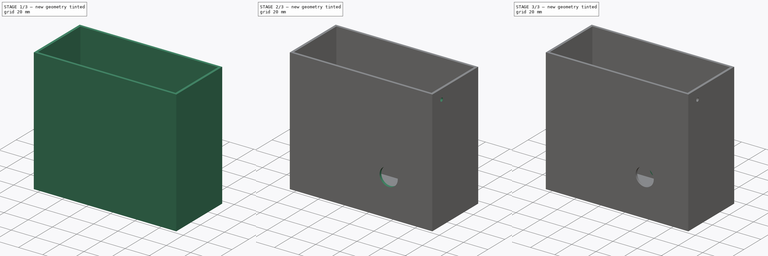
[diagram: build sequence overview — one tinted view per stage of 3, left to right]
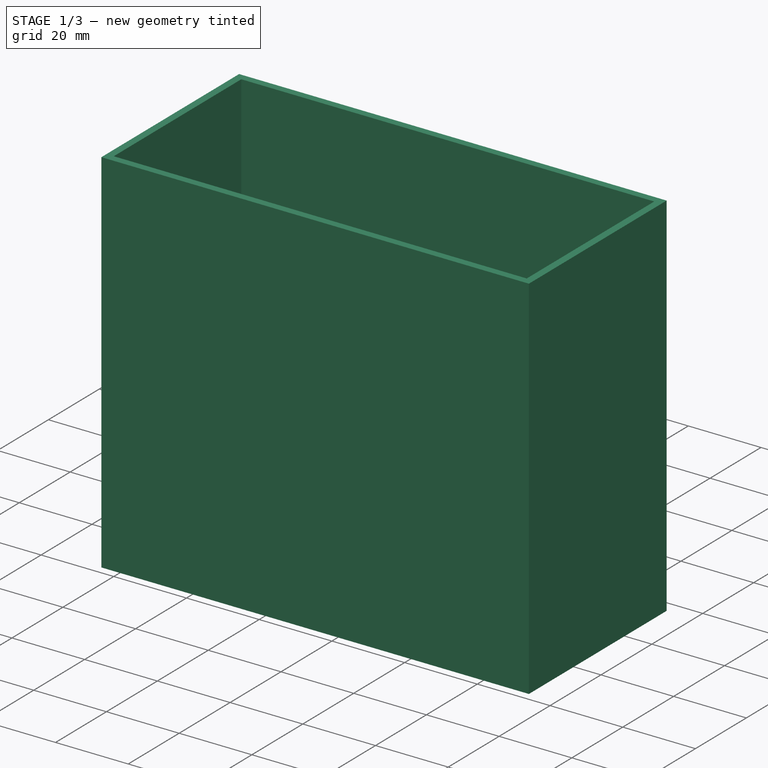
[diagram: stage 1 of 3 — iso view after this stage's code; geometry added in this stage tinted green]
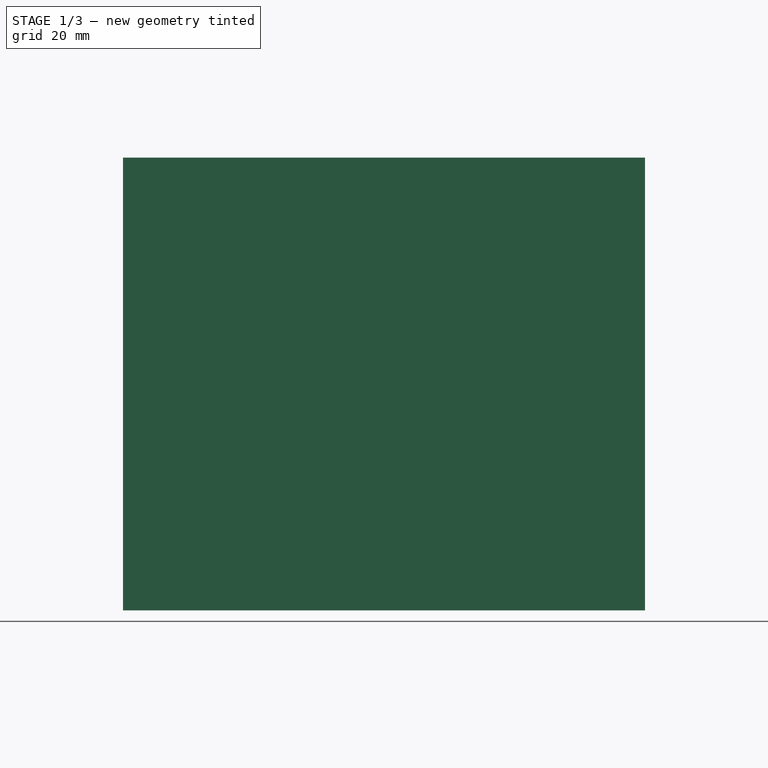
[diagram: stage 1 of 3 — front view after this stage's code; geometry added in this stage tinted green]
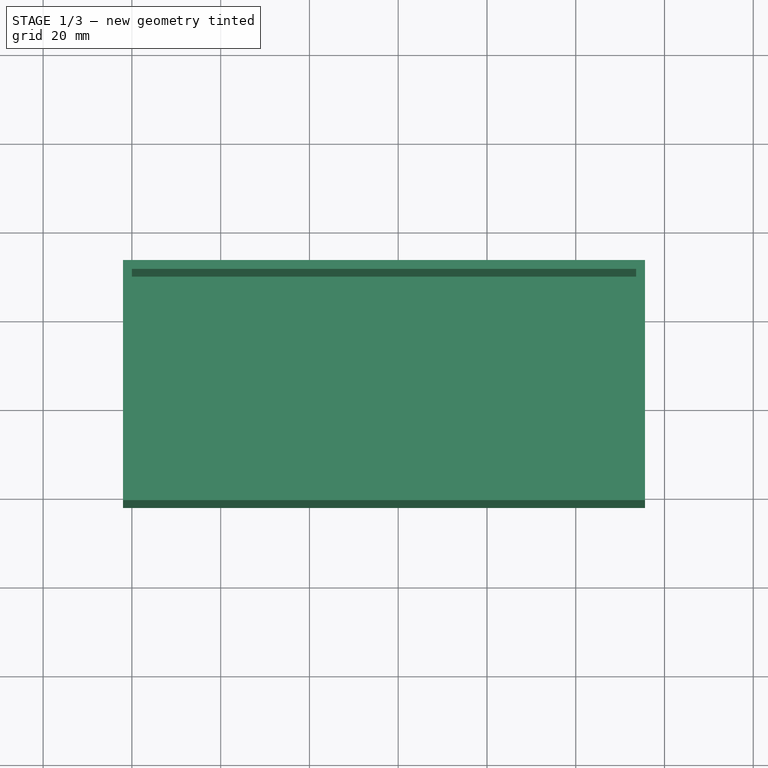
[diagram: stage 1 of 3 — top view after this stage's code; geometry added in this stage tinted green]
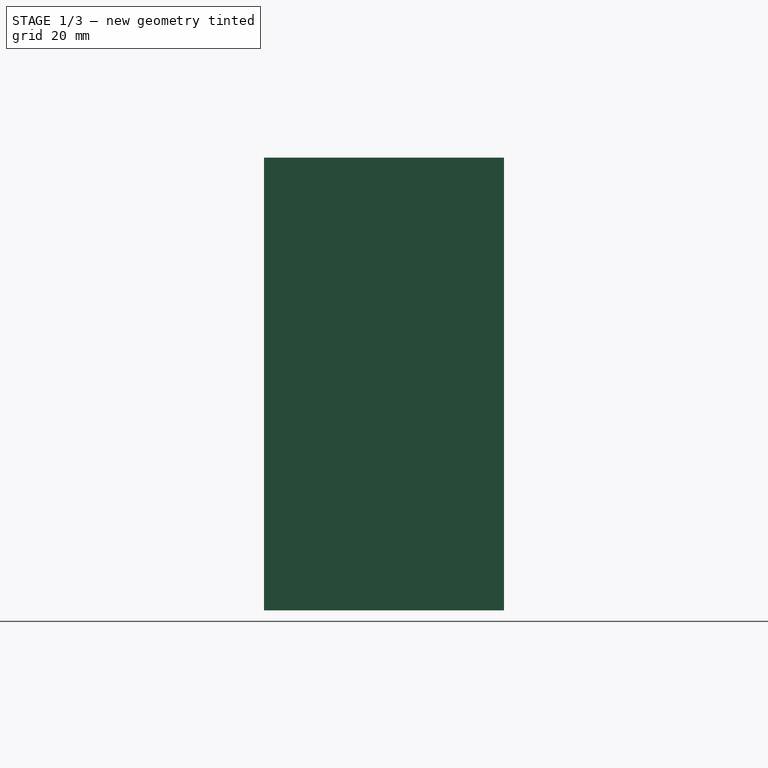
[diagram: stage 1 of 3 — right view after this stage's code; geometry added in this stage tinted green]
FCSTD DOCUMENT  (FreeCAD 0.21R33771 (Git))
Label: 3DPrinter-PSU-Base
License: All rights reserved
LicenseURL: http://en.wikipedia.org/wiki/All_rights_reserved
objects: Sketcher::SketchObject×6, PartDesign::Pad×3, PartDesign::Pocket×3, PartDesign::Fillet×1, PartDesign::Body×1
note: 21 computed .brp shape members not serialized (recipe doc carries the construction recipe); baked Part::Feature solids carry a one-line shape summary decoded from their .brp

FEATURE [Sketcher::SketchObject] Sketch
  FullyConstrained = true
  MapMode = 5
  Support = -> [XY_Plane]
  sketch-geometry (12):
    g0: LineSegment StartX=0 StartY=0 StartZ=0 EndX=113.6 EndY=0 EndZ=0
    g1: LineSegment StartX=113.6 StartY=0 StartZ=0 EndX=113.6 EndY=50.1 EndZ=0
    g2: LineSegment StartX=113.6 StartY=50.1 StartZ=0 EndX=0 EndY=50.1 EndZ=0
    g3: LineSegment StartX=0 StartY=50.1 StartZ=0 EndX=0 EndY=0 EndZ=0
    g4: LineSegment StartX=-2 StartY=-2 StartZ=0 EndX=115.6 EndY=-2 EndZ=0
    g5: LineSegment StartX=115.6 StartY=-2 StartZ=0 EndX=115.6 EndY=52.1 EndZ=0
    g6: LineSegment StartX=115.6 StartY=52.1 StartZ=0 EndX=-2 EndY=52.1 EndZ=0
    g7: LineSegment StartX=-2 StartY=52.1 StartZ=0 EndX=-2 EndY=-2 EndZ=0
    g8: LineSegment StartX=113.6 StartY=50.1 StartZ=0 EndX=115.6 EndY=50.1 EndZ=0
    g9: LineSegment StartX=113.6 StartY=50.1 StartZ=0 EndX=113.6 EndY=52.1 EndZ=0
    g10: LineSegment StartX=0 StartY=0 StartZ=0 EndX=-2 EndY=0 EndZ=0
    g11: LineSegment StartX=0 StartY=0 StartZ=0 EndX=0 EndY=-2 EndZ=0
  constraints (35):
    c: Coincident(g0,g1)
    c: Coincident(g1,g2)
    c: Coincident(g2,g3)
    c: Coincident(g3,g0)
    c: Horizontal(g0)
    c: Horizontal(g2)
    c: Vertical(g1)
    c: Vertical(g3)
    c: Coincident(g0,g-1)
    c: DistanceX(g0,g0) = 113.6
    c: Coincident(g4,g5)
    c: Coincident(g5,g6)
    c: Coincident(g6,g7)
    c: Coincident(g7,g4)
    c: Horizontal(g4)
    c: Horizontal(g6)
    c: Vertical(g5)
    c: Vertical(g7)
    c: DistanceY(g1,g1) = 50.1
    c: Coincident(g8,g1)
    c: PointOnObject(g8,g5)
    c: Horizontal(g8)
    c: DistanceX(g8,g8) = 2
    c: Coincident(g9,g1)
    c: PointOnObject(g9,g6)
    c: Vertical(g9)
    c: Equal(g9,g8)
    c: Coincident(g10,g0)
    c: PointOnObject(g10,g7)
    c: Horizontal(g10)
    c: Coincident(g11,g0)
    c: PointOnObject(g11,g4)
    c: Vertical(g11)
    c: Equal(g11,g10)
    c: Equal(g10,g8)
FEATURE [PartDesign::Pad] Pad
  Direction = (0,0,1)
  Length = 100
  Length2 = 10
  Profile = -> Sketch
  ReferenceAxis = -> Sketch [N_Axis]
  Type = 0
FEATURE [Sketcher::SketchObject] Sketch001
  ExternalGeometry = -> [Pad]
  FullyConstrained = true
  MapMode = 5
  Placement = pos=(0,0,0) rot=(1,0,0;3.14159rad)
  Support = -> [Pad]
  sketch-geometry (4):
    g0: LineSegment StartX=115.6 StartY=-52.1 StartZ=0 EndX=-2 EndY=-52.1 EndZ=0
    g1: LineSegment StartX=-2 StartY=-52.1 StartZ=0 EndX=-2 EndY=2 EndZ=0
    g2: LineSegment StartX=-2 StartY=2 StartZ=0 EndX=115.6 EndY=2 EndZ=0
    g3: LineSegment StartX=115.6 StartY=2 StartZ=0 EndX=115.6 EndY=-52.1 EndZ=0
  constraints (10):
    c: Coincident(g0,g1)
    c: Coincident(g1,g2)
    c: Coincident(g2,g3)
    c: Coincident(g3,g0)
    c: Horizontal(g0)
    c: Horizontal(g2)
    c: Vertical(g1)
    c: Vertical(g3)
    c: Coincident(g0,g-6)
    c: Coincident(g1,g-4)
FEATURE [PartDesign::Pad] Pad001
  BaseFeature = -> Pad
  Direction = (0,0,-1)
  Length = 2
  Length2 = 10
  Profile = -> Sketch001
  ReferenceAxis = -> Sketch001 [N_Axis]
  Type = 0
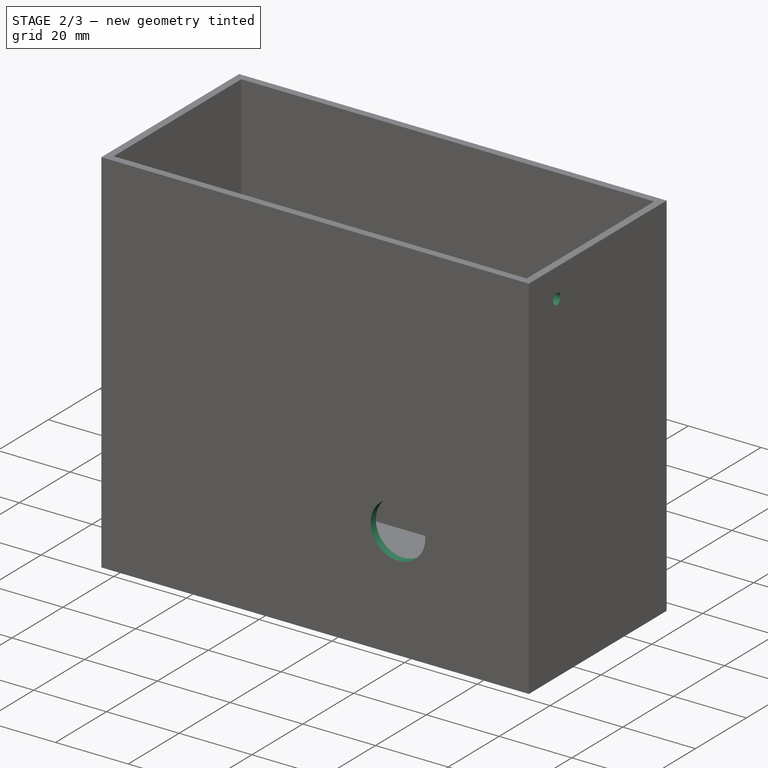
[diagram: stage 2 of 3 — iso view after this stage's code; geometry added in this stage tinted green]
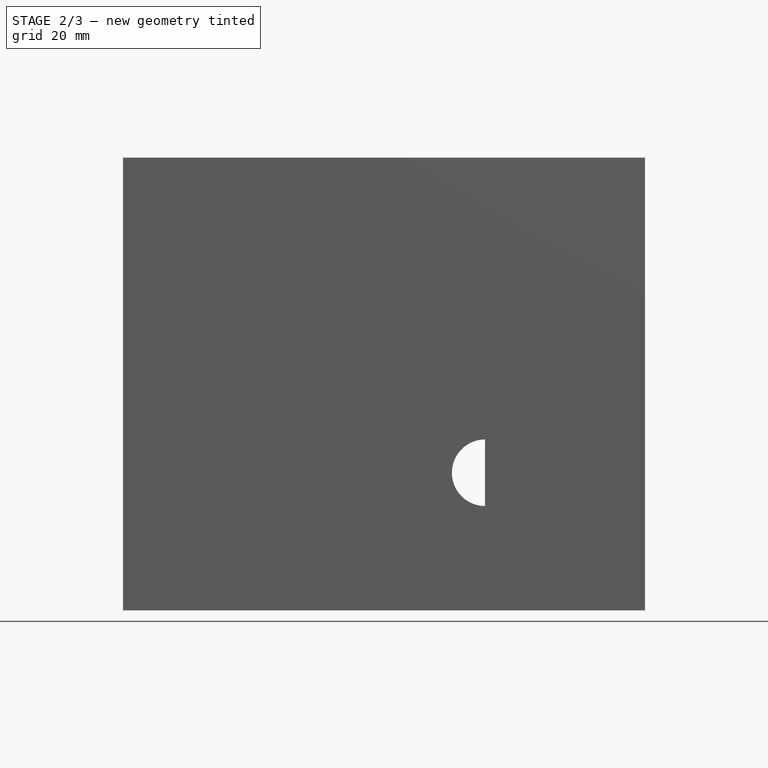
[diagram: stage 2 of 3 — front view after this stage's code; geometry added in this stage tinted green]
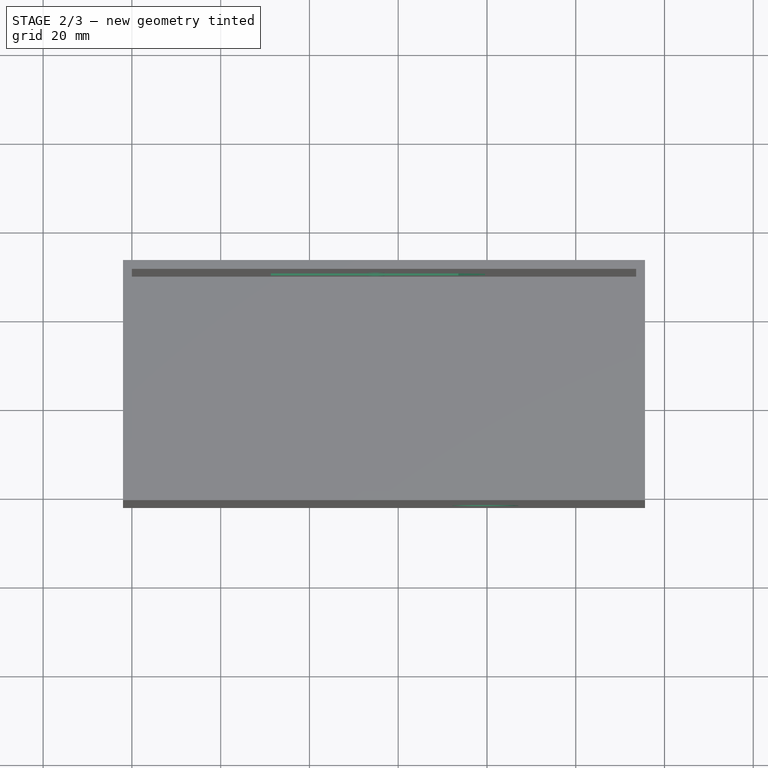
[diagram: stage 2 of 3 — top view after this stage's code; geometry added in this stage tinted green]
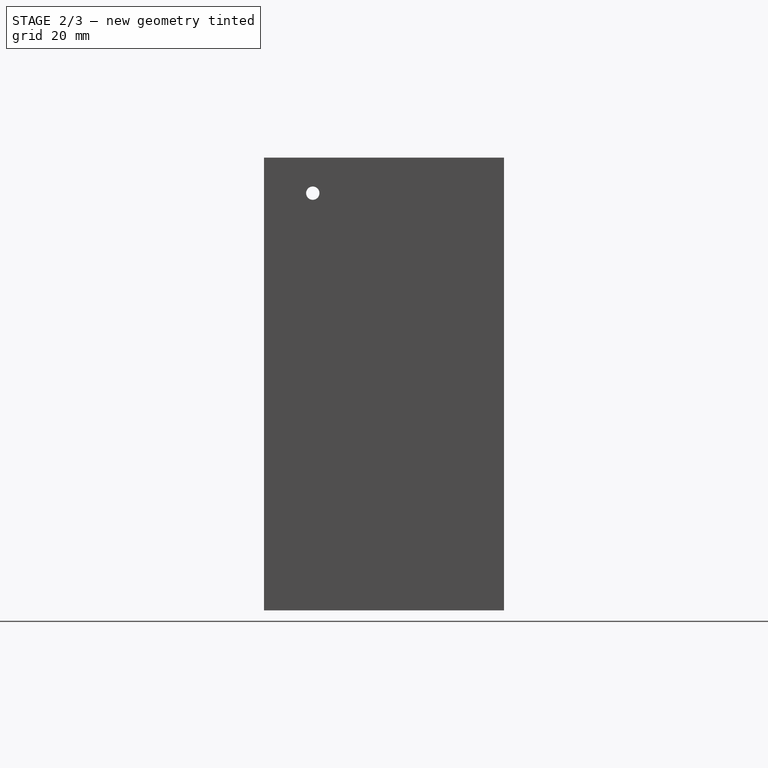
[diagram: stage 2 of 3 — right view after this stage's code; geometry added in this stage tinted green]
FEATURE [Sketcher::SketchObject] Sketch002
  ExternalGeometry = -> [Pad001]
  FullyConstrained = true
  MapMode = 5
  Placement = pos=(0,-2,0) rot=(1,0,0;1.5708rad)
  Support = -> [Pad001]
  sketch-geometry (1):
    g0: Circle CenterX=79.6 CenterY=29 CenterZ=0 NormalX=0 NormalY=0 NormalZ=1 AngleXU=0 Radius=7.5
  constraints (3):
    c: Diameter(g0) = 15
    c: DistanceX(g0,g-3) = 36
    c: DistanceY(g-3,g0) = 29
FEATURE [PartDesign::Pocket] Pocket
  BaseFeature = -> Pad001
  Direction = (0,1,-2e-16)
  Length = 5
  Length2 = 5
  Profile = -> Sketch002
  ReferenceAxis = -> Sketch002 [N_Axis]
  Type = 0
FEATURE [Sketcher::SketchObject] Sketch003
  ExternalGeometry = -> [Pocket]
  FullyConstrained = true
  MapMode = 5
  Placement = pos=(-2,0,0) rot=(0.57735,-0.57735,-0.57735;2.0944rad)
  Support = -> [Pocket]
  sketch-geometry (1):
    g0: Circle CenterX=-9 CenterY=92 CenterZ=0 NormalX=0 NormalY=0 NormalZ=1 AngleXU=0 Radius=1.5
  constraints (3):
    c: Diameter(g0) = 3
    c: DistanceY(g0,g-3) = 8
    c: DistanceX(g0,g-5) = 11
FEATURE [PartDesign::Pocket] Pocket001
  BaseFeature = -> Pocket
  Direction = (1,0,0)
  Length = 5
  Length2 = 5
  Profile = -> Sketch003
  ReferenceAxis = -> Sketch003 [N_Axis]
  Type = 1
FEATURE [Sketcher::SketchObject] Sketch004
  ExternalGeometry = -> [Pocket001]
  FullyConstrained = true
  MapMode = 5
  Placement = pos=(0,52.1,0) rot=(0,0.707107,0.707107;3.14159rad)
  Support = -> [Pocket001]
  sketch-geometry (11):
    g0: LineSegment StartX=-31.3 StartY=42.4 StartZ=0 EndX=-31.3 EndY=14.4 EndZ=0
    g1: LineSegment StartX=-31.3 StartY=42.4 StartZ=0 EndX=-73.55 EndY=42.4 EndZ=0
    g2: LineSegment StartX=-31.3 StartY=14.4 StartZ=0 EndX=-73.55 EndY=14.4 EndZ=0
    g3: LineSegment StartX=-73.55 StartY=42.4 StartZ=0 EndX=-79.55 EndY=36.7 EndZ=0
    g4: LineSegment StartX=-73.55 StartY=14.4 StartZ=0 EndX=-79.55 EndY=20.1 EndZ=0
    g5: LineSegment StartX=-79.55 StartY=36.7 StartZ=0 EndX=-79.55 EndY=20.1 EndZ=0
    g6: Circle CenterX=-54.9 CenterY=48 CenterZ=0 NormalX=0 NormalY=0 NormalZ=1 AngleXU=0 Radius=2
    g7: Circle CenterX=-54.9 CenterY=8.8 CenterZ=0 NormalX=0 NormalY=0 NormalZ=1 AngleXU=0 Radius=2
    g8: LineSegment StartX=-54.9 StartY=48 StartZ=0 EndX=-54.9 EndY=42.4 EndZ=0
    g9: LineSegment StartX=-54.9 StartY=8.8 StartZ=0 EndX=-54.9 EndY=14.4 EndZ=0
    g10: LineSegment StartX=-54.9 StartY=14.4 StartZ=0 EndX=-54.9 EndY=42.4 EndZ=0
  constraints (32):
    c: Vertical(g0)
    c: Coincident(g1,g0)
    c: Horizontal(g1)
    c: Coincident(g2,g0)
    c: Horizontal(g2)
    c: Coincident(g3,g1)
    c: Coincident(g4,g2)
    c: Coincident(g5,g3)
    c: Coincident(g5,g4)
    c: Vertical(g5)
    c: Equal(g3,g4)
    c: DistanceY(g0,g0) = 28
    c: DistanceX(g3,g0) = 48.25
    c: Equal(g2,g1)
    c: DistanceX(g2,g2) = 42.25
    c: DistanceY(g5,g5) = 16.6
    c: DistanceX(g0,g-3) = 33.3
    c: DistanceY(g-3,g0) = 14.4
    c: Equal(g6,g7)
    c: Coincident(g8,g6)
    c: PointOnObject(g8,g1)
    c: Vertical(g8)
    c: Coincident(g9,g7)
    c: Vertical(g9)
    c: PointOnObject(g9,g2)
    c: Coincident(g10,g9)
    c: Coincident(g10,g8)
    c: Vertical(g10)
    c: Equal(g8,g9)
    c: DistanceY(g8,g8) = 5.6
    c: DistanceX(g9,g0) = 23.6
    c: Diameter(g7) = 4
FEATURE [PartDesign::Pocket] Pocket002
  BaseFeature = -> Pocket001
  Direction = (0,-1,2e-16)
  Length = 5
  Length2 = 5
  Profile = -> Sketch004
  ReferenceAxis = -> Sketch004 [N_Axis]
  Type = 0
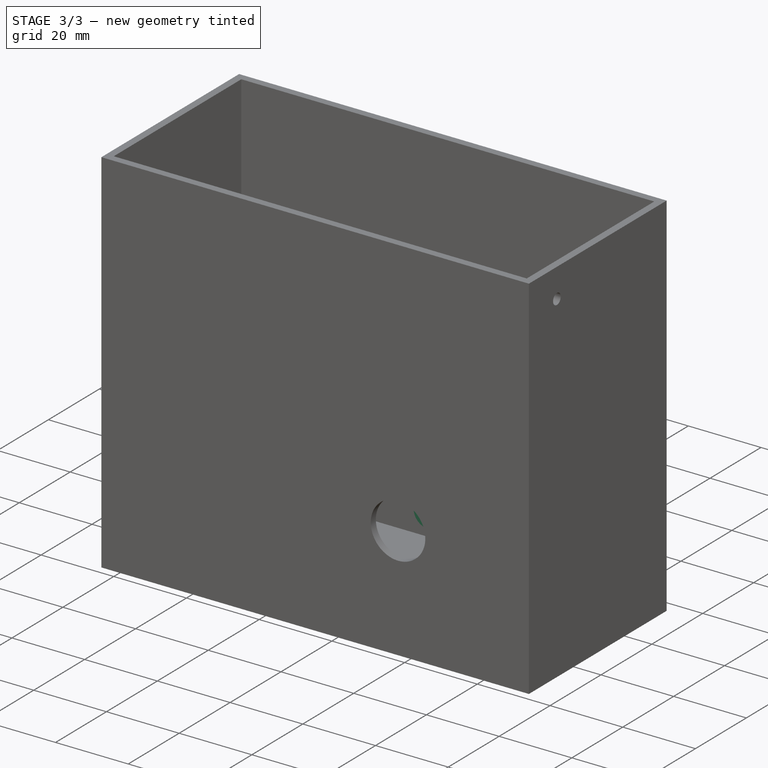
[diagram: stage 3 of 3 — iso view after this stage's code; geometry added in this stage tinted green]
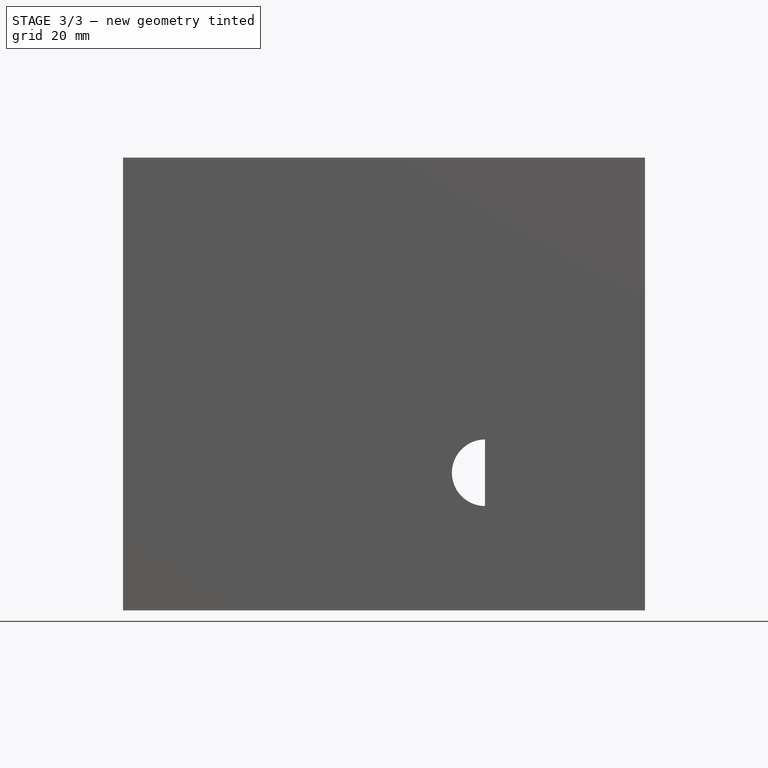
[diagram: stage 3 of 3 — front view after this stage's code; geometry added in this stage tinted green]
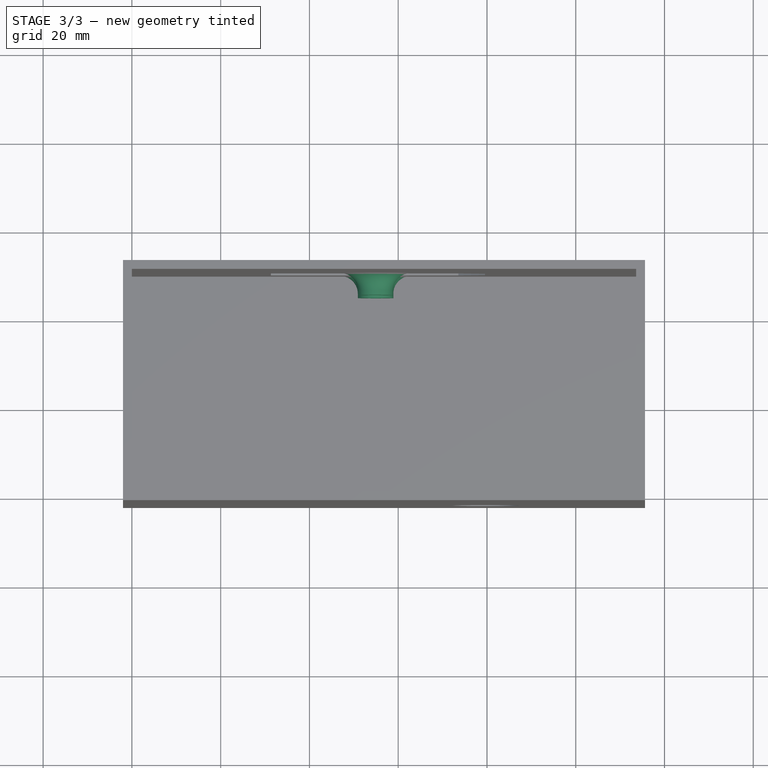
[diagram: stage 3 of 3 — top view after this stage's code; geometry added in this stage tinted green]
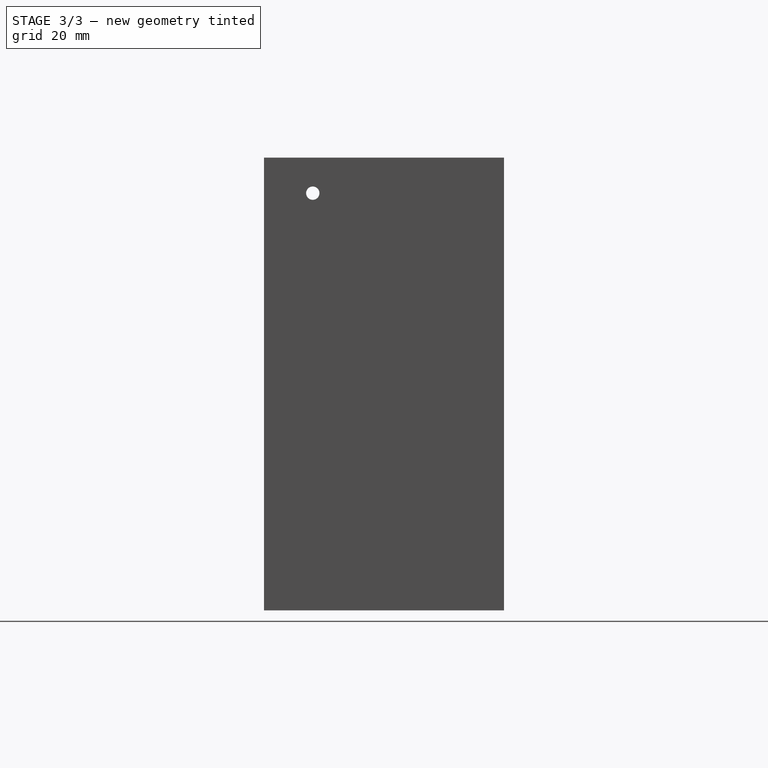
[diagram: stage 3 of 3 — right view after this stage's code; geometry added in this stage tinted green]
FEATURE [Sketcher::SketchObject] Sketch005
  ExternalGeometry = -> [Pocket002]
  FullyConstrained = true
  MapMode = 5
  Placement = pos=(0,50.1,0) rot=(1,0,0;1.5708rad)
  Support = -> [Pocket002]
  sketch-geometry (4):
    g0: Circle CenterX=54.9 CenterY=48 CenterZ=0 NormalX=0 NormalY=0 NormalZ=1 AngleXU=0 Radius=2
    g1: Circle CenterX=54.9 CenterY=48 CenterZ=0 NormalX=0 NormalY=0 NormalZ=1 AngleXU=0 Radius=4
    g2: Circle CenterX=54.9 CenterY=8.8 CenterZ=0 NormalX=0 NormalY=0 NormalZ=1 AngleXU=0 Radius=2
    g3: Circle CenterX=54.9 CenterY=8.8 CenterZ=0 NormalX=0 NormalY=0 NormalZ=1 AngleXU=0 Radius=4
  constraints (8):
    c: Coincident(g0,g-3)
    c: Equal(g0,g-3)
    c: Coincident(g1,g0)
    c: Diameter(g1) = 8
    c: Coincident(g2,g-4)
    c: Equal(g2,g-4)
    c: Coincident(g3,g2)
    c: Equal(g3,g1)
FEATURE [PartDesign::Pad] Pad002
  BaseFeature = -> Pocket002
  Direction = (0,-1,2e-16)
  Length = 5
  Length2 = 10
  Profile = -> Sketch005
  ReferenceAxis = -> Sketch005 [N_Axis]
  Type = 0
FEATURE [PartDesign::Fillet] Fillet
  Base = -> Pad002 [Edge48,Edge55]
  BaseFeature = -> Pad002
  Radius = 4
  SupportTransform = false
  UseAllEdges = false
FEATURE [PartDesign::Body] Body
  Group = -> [Sketch,Pad,Sketch001,Pad001,Sketch002,Pocket,Sketch003,Pocket001,Sketch004,Pocket002,Sketch005,Pad002,Fillet]
  Origin = -> Origin
  Tip = -> Fillet
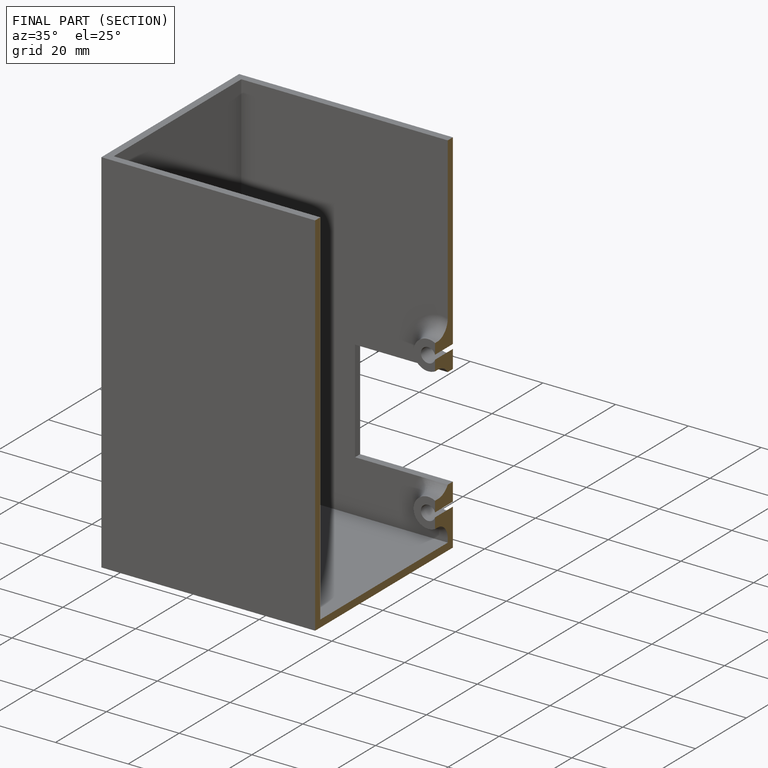
[diagram: finished part — half-section view (interior)]
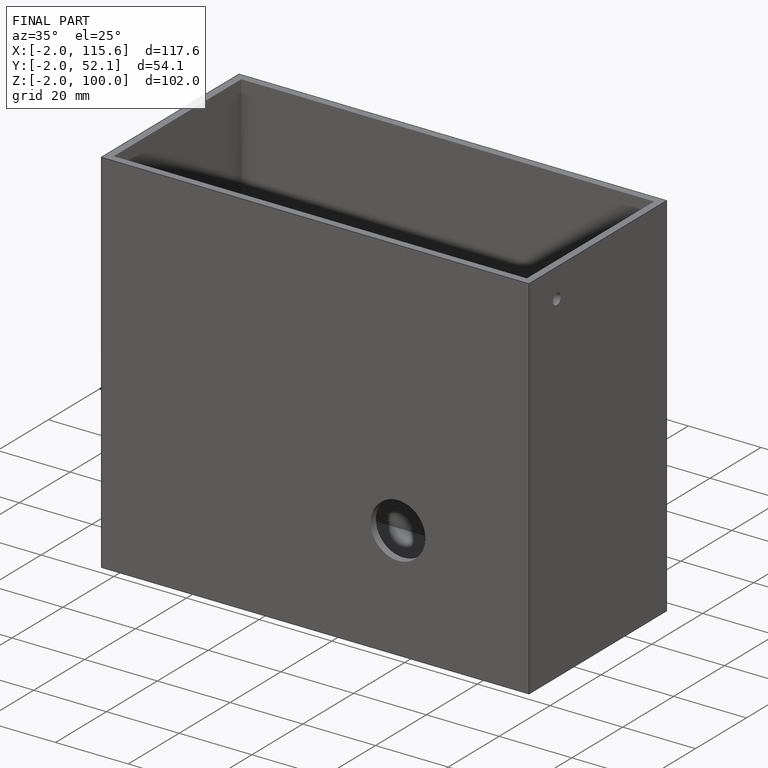
[diagram: finished part — iso view with bounding-box wireframe]
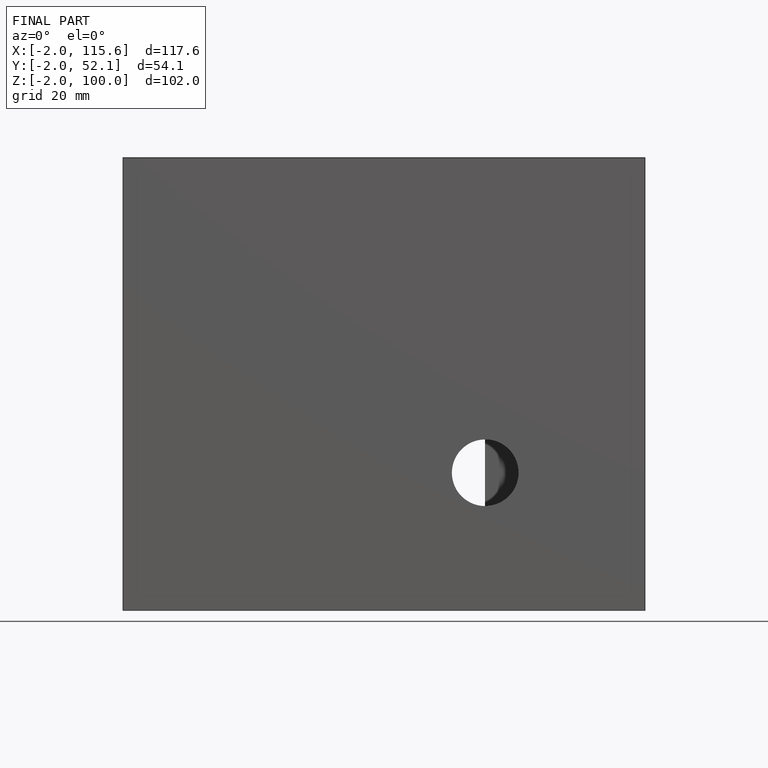
[diagram: finished part — front view with bounding-box wireframe]
